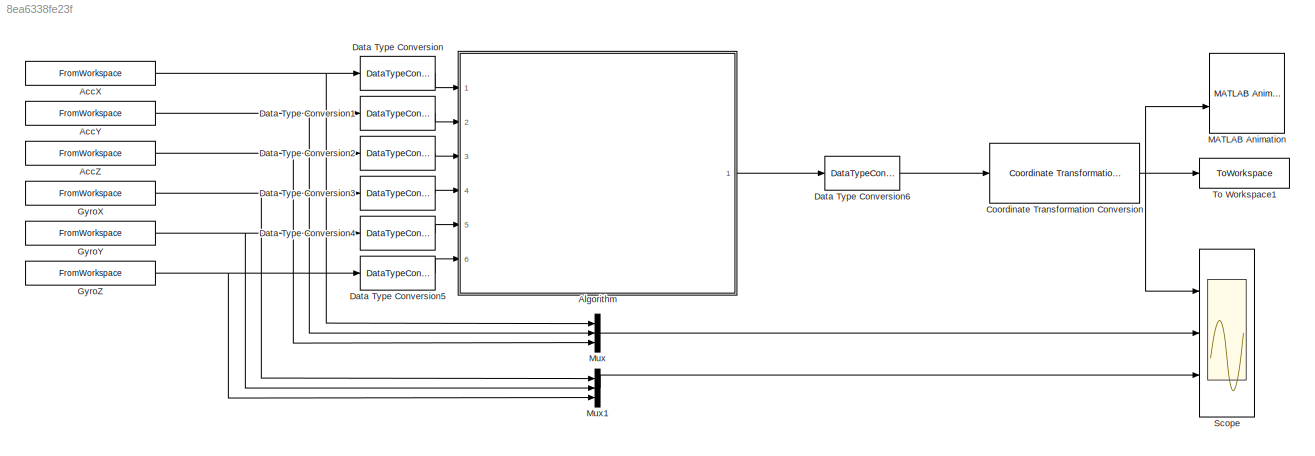
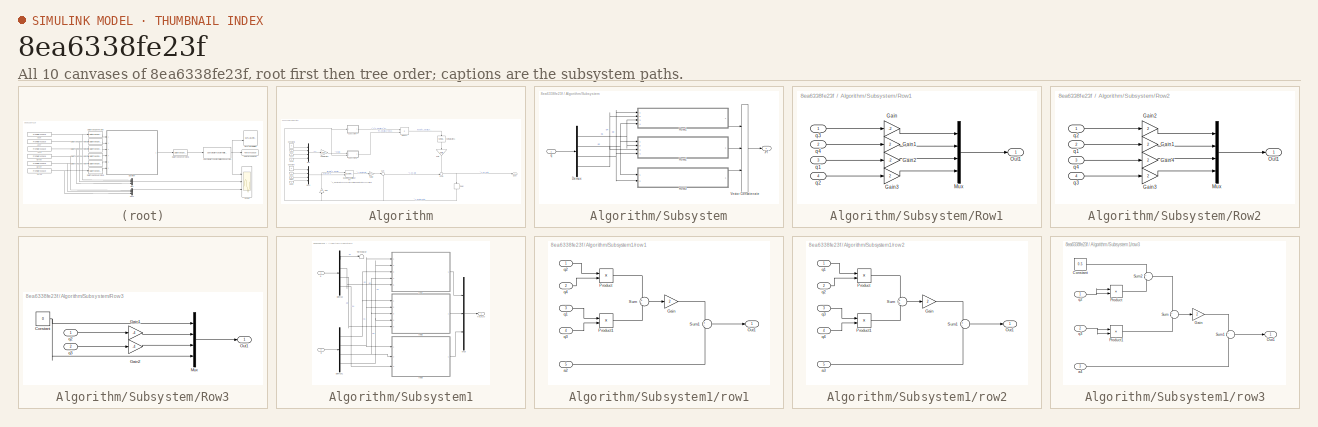
[diagram: thumbnail index - all 10 canvases of the model, root first then tree order]
MODEL slx_8ea6338fe23f
KIND model
CONFIG AbsTol = auto
CONFIG EnableMultiTasking = off
CONFIG FixedStep = dt
CONFIG MaxStep = auto
CONFIG MinStep = auto
CONFIG RelTol = 1e-3
CONFIG SampleTimeConstraint = Unconstrained
CONFIG Solver = FixedStepDiscrete
CONFIG SolverName = FixedStepDiscrete
CONFIG StartTime = 0.0
CONFIG StopTime = t(totalNumSamples)
BLOCK [FromWorkspace] AccX
  SampleTime = dt
  VariableName = AccX
BLOCK [FromWorkspace] AccY
  SampleTime = dt
  VariableName = AccY
BLOCK [FromWorkspace] AccZ
  SampleTime = dt
  VariableName = AccZ
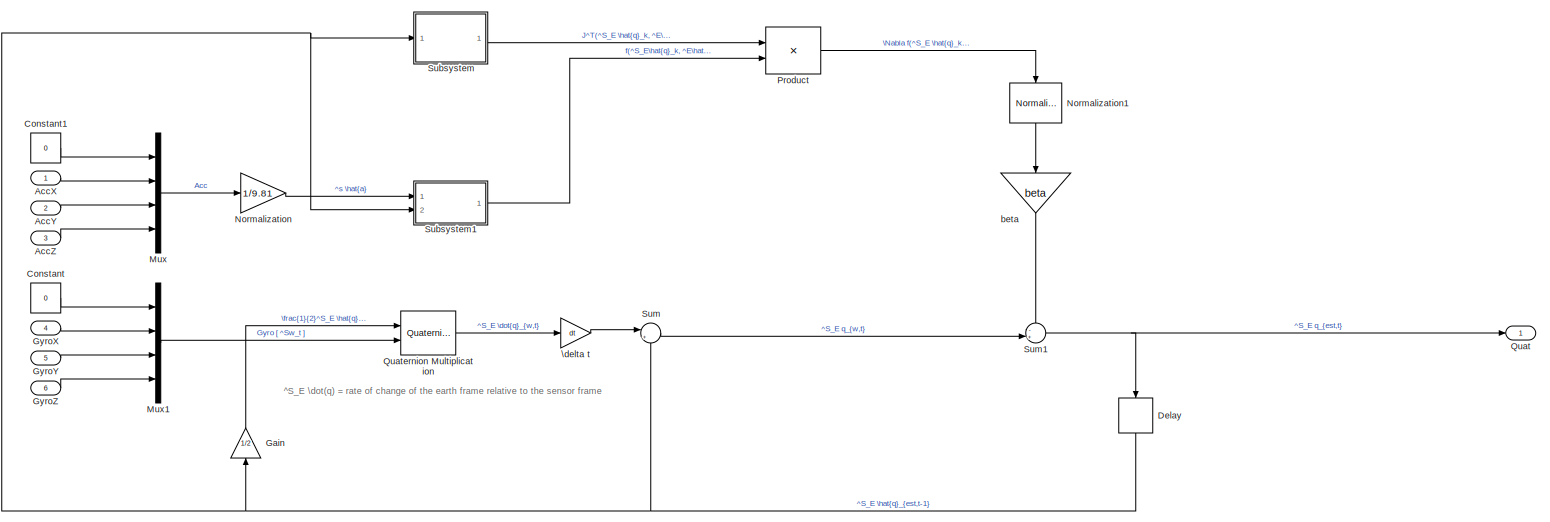
[diagram: Algorithm - part 1/1, most of the canvas]
BLOCK [SubSystem] Algorithm
  Ports = [6, 1]
  RequestExecContextInheritance = off
BLOCK [Inport] Algorithm/AccX
BLOCK [Inport] Algorithm/AccY
  Port = 2
BLOCK [Inport] Algorithm/AccZ
  Port = 3
BLOCK [Constant] Algorithm/Constant
  OutDataTypeStr = single
  Value = 0
BLOCK [Constant] Algorithm/Constant1
  OutDataTypeStr = single
  Value = 0
BLOCK [Delay] Algorithm/Delay
  DelayLength = 1
  InitialCondition = [1 0 0 0]
  InputPortMap = u0
  NameLocation = left
  Ports = [1, 1]
BLOCK [Gain] Algorithm/Gain
  Gain = 1/2
  NameLocation = right
  OutDataTypeStr = Inherit: Same as input
BLOCK [Inport] Algorithm/GyroX
  Port = 4
BLOCK [Inport] Algorithm/GyroY
  Port = 5
BLOCK [Inport] Algorithm/GyroZ
  Port = 6
BLOCK [Mux] Algorithm/Mux
  DisplayOption = bar
  Ports = [4, 1]
BLOCK [Mux] Algorithm/Mux1
  DisplayOption = bar
  Ports = [4, 1]
BLOCK [Gain] Algorithm/Normalization
  Commented = through
  Gain = 1/9.81
  OutDataTypeStr = Inherit: Same as input
  ParamDataTypeStr = Inherit: Same as input
BLOCK [Reference] Algorithm/Normalization1  REF=dspmathops/Normalization
  NameLocation = left
  Ports = [1, 1]
  SourceBlock = dspmathops/Normalization
  SourceProductBaseCode = DS
  SourceType = Normalization
BLOCK [Product] Algorithm/Product
  Multiplication = Matrix(*)
  OutDataTypeStr = Inherit: Same as first input
  Ports = [2, 1]
BLOCK [Outport] Algorithm/Quat
BLOCK [Reference] Algorithm/Quaternion Multiplication  REF=aerolibutil/Quaternion
Multiplication
  Ports = [2, 1]
  SourceBlock = aerolibutil/Quaternion\nMultiplication
  SourceProductBaseCode = AE
  SourceType = Quaternion Multiplication
BLOCK [SubSystem] Algorithm/Subsystem
  Ports = [1, 1]
  RequestExecContextInheritance = off
BLOCK [Demux] Algorithm/Subsystem/Demux
  Ports = [1, 4]
BLOCK [Outport] Algorithm/Subsystem/J^T
BLOCK [SubSystem] Algorithm/Subsystem/Row1
  Ports = [4, 1]
  RequestExecContextInheritance = off
BLOCK [Gain] Algorithm/Subsystem/Row1/Gain
  Gain = -2
  OutDataTypeStr = Inherit: Same as input
  ParamDataTypeStr = single
BLOCK [Gain] Algorithm/Subsystem/Row1/Gain1
  Gain = 2
  OutDataTypeStr = single
  ParamDataTypeStr = Inherit: Same as input
BLOCK [Gain] Algorithm/Subsystem/Row1/Gain2
  Gain = -2
  OutDataTypeStr = single
  ParamDataTypeStr = Inherit: Same as input
BLOCK [Gain] Algorithm/Subsystem/Row1/Gain3
  Gain = 2
  OutDataTypeStr = single
  ParamDataTypeStr = Inherit: Same as input
BLOCK [Mux] Algorithm/Subsystem/Row1/Mux
  DisplayOption = bar
  Ports = [4, 1]
BLOCK [Outport] Algorithm/Subsystem/Row1/Out1
BLOCK [Inport] Algorithm/Subsystem/Row1/q1
  Port = 3
BLOCK [Inport] Algorithm/Subsystem/Row1/q2
  Port = 4
BLOCK [Inport] Algorithm/Subsystem/Row1/q3
BLOCK [Inport] Algorithm/Subsystem/Row1/q4
  Port = 2
BLOCK [SubSystem] Algorithm/Subsystem/Row2
  Ports = [4, 1]
  RequestExecContextInheritance = off
BLOCK [Gain] Algorithm/Subsystem/Row2/Gain1
  Gain = 2
  OutDataTypeStr = single
  ParamDataTypeStr = Inherit: Same as input
BLOCK [Gain] Algorithm/Subsystem/Row2/Gain2
  Gain = 2
  OutDataTypeStr = single
  ParamDataTypeStr = Inherit: Same as input
BLOCK [Gain] Algorithm/Subsystem/Row2/Gain3
  Gain = 2
  OutDataTypeStr = single
  ParamDataTypeStr = Inherit: Same as input
BLOCK [Gain] Algorithm/Subsystem/Row2/Gain4
  Gain = 2
  OutDataTypeStr = single
  ParamDataTypeStr = Inherit: Same as input
BLOCK [Mux] Algorithm/Subsystem/Row2/Mux
  DisplayOption = bar
  Ports = [4, 1]
BLOCK [Outport] Algorithm/Subsystem/Row2/Out1
BLOCK [Inport] Algorithm/Subsystem/Row2/q1
  Port = 2
BLOCK [Inport] Algorithm/Subsystem/Row2/q2
BLOCK [Inport] Algorithm/Subsystem/Row2/q3
  Port = 4
BLOCK [Inport] Algorithm/Subsystem/Row2/q4
  Port = 3
BLOCK [SubSystem] Algorithm/Subsystem/Row3
  Ports = [2, 1]
  RequestExecContextInheritance = off
BLOCK [Constant] Algorithm/Subsystem/Row3/Constant
  OutDataTypeStr = single
  Value = 0
BLOCK [Gain] Algorithm/Subsystem/Row3/Gain1
  Gain = -4
  OutDataTypeStr = single
BLOCK [Gain] Algorithm/Subsystem/Row3/Gain2
  Gain = -4
  OutDataTypeStr = single
BLOCK [Mux] Algorithm/Subsystem/Row3/Mux
  DisplayOption = bar
  Ports = [4, 1]
BLOCK [Outport] Algorithm/Subsystem/Row3/Out1
BLOCK [Inport] Algorithm/Subsystem/Row3/q2
BLOCK [Inport] Algorithm/Subsystem/Row3/q3
  Port = 2
BLOCK [Concatenate] Algorithm/Subsystem/Vector Concatenate
  ConcatenateDimension = 2
  Mode = Multidimensional array
  NumInputs = 3
  Ports = [3, 1]
BLOCK [Inport] Algorithm/Subsystem/q
BLOCK [SubSystem] Algorithm/Subsystem1
  Ports = [2, 1]
  RequestExecContextInheritance = off
BLOCK [Demux] Algorithm/Subsystem1/Demux
  Ports = [1, 4]
BLOCK [Demux] Algorithm/Subsystem1/Demux1
  Ports = [1, 4]
BLOCK [Mux] Algorithm/Subsystem1/Mux
  DisplayOption = bar
  Inputs = 3
  Ports = [3, 1]
BLOCK [Terminator] Algorithm/Subsystem1/Terminator
BLOCK [Inport] Algorithm/Subsystem1/a
BLOCK [Outport] Algorithm/Subsystem1/f(q,d,s)
BLOCK [Inport] Algorithm/Subsystem1/q
  Port = 2
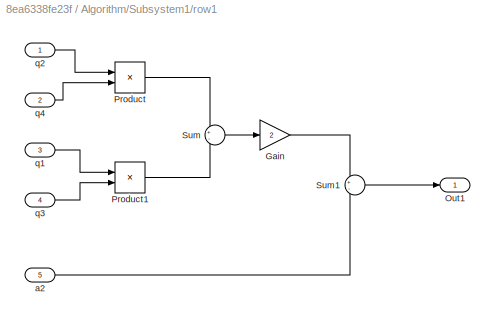
BLOCK [SubSystem] Algorithm/Subsystem1/row1
  Ports = [5, 1]
  RequestExecContextInheritance = off
BLOCK [Gain] Algorithm/Subsystem1/row1/Gain
  Gain = 2
  OutDataTypeStr = single
  ParamDataTypeStr = Inherit: Same as input
BLOCK [Outport] Algorithm/Subsystem1/row1/Out1
BLOCK [Product] Algorithm/Subsystem1/row1/Product
  OutDataTypeStr = Inherit: Same as first input
  Ports = [2, 1]
BLOCK [Product] Algorithm/Subsystem1/row1/Product1
  OutDataTypeStr = Inherit: Same as first input
  Ports = [2, 1]
BLOCK [Sum] Algorithm/Subsystem1/row1/Sum
  AccumDataTypeStr = single
  Inputs = +-
  OutDataTypeStr = single
  Ports = [2, 1]
BLOCK [Sum] Algorithm/Subsystem1/row1/Sum1
  AccumDataTypeStr = single
  Inputs = +-
  OutDataTypeStr = single
  Ports = [2, 1]
BLOCK [Inport] Algorithm/Subsystem1/row1/a2
  Port = 5
BLOCK [Inport] Algorithm/Subsystem1/row1/q1
  Port = 3
BLOCK [Inport] Algorithm/Subsystem1/row1/q2
BLOCK [Inport] Algorithm/Subsystem1/row1/q3
  Port = 4
BLOCK [Inport] Algorithm/Subsystem1/row1/q4
  Port = 2
BLOCK [SubSystem] Algorithm/Subsystem1/row2
  Ports = [5, 1]
  RequestExecContextInheritance = off
BLOCK [Gain] Algorithm/Subsystem1/row2/Gain
  Gain = 2
  OutDataTypeStr = single
  ParamDataTypeStr = Inherit: Same as input
BLOCK [Outport] Algorithm/Subsystem1/row2/Out1
BLOCK [Product] Algorithm/Subsystem1/row2/Product
  OutDataTypeStr = Inherit: Same as first input
  Ports = [2, 1]
BLOCK [Product] Algorithm/Subsystem1/row2/Product1
  OutDataTypeStr = Inherit: Same as first input
  Ports = [2, 1]
BLOCK [Sum] Algorithm/Subsystem1/row2/Sum
  AccumDataTypeStr = single
  OutDataTypeStr = single
  Ports = [2, 1]
BLOCK [Sum] Algorithm/Subsystem1/row2/Sum1
  AccumDataTypeStr = single
  Inputs = +-
  OutDataTypeStr = single
  Ports = [2, 1]
BLOCK [Inport] Algorithm/Subsystem1/row2/a3
  Port = 5
BLOCK [Inport] Algorithm/Subsystem1/row2/q1
BLOCK [Inport] Algorithm/Subsystem1/row2/q2
  Port = 2
BLOCK [Inport] Algorithm/Subsystem1/row2/q3
  Port = 3
BLOCK [Inport] Algorithm/Subsystem1/row2/q4
  Port = 4
BLOCK [SubSystem] Algorithm/Subsystem1/row3
  Ports = [3, 1]
  RequestExecContextInheritance = off
BLOCK [Constant] Algorithm/Subsystem1/row3/Constant
  OutDataTypeStr = single
  Value = 0.5
BLOCK [Gain] Algorithm/Subsystem1/row3/Gain
  Gain = 2
  OutDataTypeStr = single
  ParamDataTypeStr = Inherit: Same as input
BLOCK [Outport] Algorithm/Subsystem1/row3/Out1
BLOCK [Product] Algorithm/Subsystem1/row3/Product
  OutDataTypeStr = Inherit: Same as first input
  Ports = [2, 1]
BLOCK [Product] Algorithm/Subsystem1/row3/Product1
  OutDataTypeStr = Inherit: Same as first input
  Ports = [2, 1]
BLOCK [Sum] Algorithm/Subsystem1/row3/Sum
  AccumDataTypeStr = single
  Inputs = +-
  OutDataTypeStr = single
  Ports = [2, 1]
BLOCK [Sum] Algorithm/Subsystem1/row3/Sum1
  AccumDataTypeStr = single
  Inputs = +-
  OutDataTypeStr = single
  Ports = [2, 1]
BLOCK [Sum] Algorithm/Subsystem1/row3/Sum2
  AccumDataTypeStr = single
  Inputs = +-
  OutDataTypeStr = single
  Ports = [2, 1]
BLOCK [Inport] Algorithm/Subsystem1/row3/a4
  Port = 3
BLOCK [Inport] Algorithm/Subsystem1/row3/q2
BLOCK [Inport] Algorithm/Subsystem1/row3/q3
  Port = 2
BLOCK [Sum] Algorithm/Sum
  AccumDataTypeStr = Inherit: Same as first input
  Inputs = |++
  OutDataTypeStr = Inherit: Same as first input
  Ports = [2, 1]
BLOCK [Sum] Algorithm/Sum1
  AccumDataTypeStr = single
  Inputs = -+|
  OutDataTypeStr = single
  Ports = [2, 1]
BLOCK [Gain] Algorithm/\delta t
  Gain = dt
  OutDataTypeStr = Inherit: Same as input
BLOCK [Gain] Algorithm/beta
  Gain = beta
  NameLocation = right
  OutDataTypeStr = Inherit: Same as input
  ParamDataTypeStr = Inherit: Same as input
BLOCK [Reference] Coordinate Transformation Conversion  REF=robotcorelib/Coordinate Transformation Conversion
  Ports = [1, 1]
  SourceBlock = robotcorelib/Coordinate Transformation Conversion
  SourceProductBaseCode = NV,RO,RR
  SourceType = robotics.slcore.internal.block.CoordinateTransformationConversion
BLOCK [DataTypeConversion] Data Type Conversion
  OutDataTypeStr = single
  RndMeth = Floor
  SaturateOnIntegerOverflow = off
BLOCK [DataTypeConversion] Data Type Conversion1
  OutDataTypeStr = single
  RndMeth = Floor
  SaturateOnIntegerOverflow = off
BLOCK [DataTypeConversion] Data Type Conversion2
  OutDataTypeStr = single
  RndMeth = Floor
  SaturateOnIntegerOverflow = off
BLOCK [DataTypeConversion] Data Type Conversion3
  OutDataTypeStr = single
  RndMeth = Floor
  SaturateOnIntegerOverflow = off
BLOCK [DataTypeConversion] Data Type Conversion4
  OutDataTypeStr = single
  RndMeth = Floor
  SaturateOnIntegerOverflow = off
BLOCK [DataTypeConversion] Data Type Conversion5
  OutDataTypeStr = single
  RndMeth = Floor
  SaturateOnIntegerOverflow = off
BLOCK [DataTypeConversion] Data Type Conversion6
  OutDataTypeStr = double
  RndMeth = Floor
  SaturateOnIntegerOverflow = off
BLOCK [FromWorkspace] GyroX
  SampleTime = dt
  VariableName = GyroX
BLOCK [FromWorkspace] GyroY
  SampleTime = dt
  VariableName = GyroY
BLOCK [FromWorkspace] GyroZ
  SampleTime = dt
  VariableName = GyroZ
BLOCK [Reference] MATLAB Animation  REF=aerolibanim/MATLAB
Animation
  Ports = [2]
  SourceBlock = aerolibanim/MATLAB\nAnimation
  SourceProductBaseCode = AE
  SourceType = AeroMATLABAnimation
  Tag = Matlab Animation 6 DOF
BLOCK [Mux] Mux
  DisplayOption = bar
  Inputs = 3
  Ports = [3, 1]
BLOCK [Mux] Mux1
  DisplayOption = bar
  Inputs = 3
  Ports = [3, 1]
BLOCK [Scope] Scope
  Floating = off
  NumInputPorts = 3
  Ports = [3]
  ScopeSpecificationString = Simulink.scopes.TimeScopeBlockCfg('CurrentConfiguration', extmgr.ConfigurationSet(extmgr.Configuration('Core','General UI',true),extmgr.Configuration('Core','Source UI',true),extmgr.Configuration('Sources','WiredSimulink',true),extmgr.Configuration('Visuals','Time Domain',true,'SerializedDisplays',{struct('MinYLimReal','-3.92434','MaxYLimReal','3.92007','YLabelReal','','MinYLimMag','0.00000','MaxY...<+2795ch>
BLOCK [ToWorkspace] To Workspace1
  FixptAsFi = on
  MaxDataPoints = inf
  Ports = [1]
  SampleTime = -1
  SaveFormat = Timeseries
  VariableName = EulXYZ
ANNOTATION Algorithm: ^S_E \dot(q) = rate of change of the earth frame relative to the sensor frame
NET AccX:1 -> Data Type Conversion:1, Mux:1
NET AccY:1 -> Data Type Conversion1:1, Mux:2
NET AccZ:1 -> Data Type Conversion2:1, Mux:3
LINE Algorithm/AccX:1 -> Algorithm/Mux:2
LINE Algorithm/AccY:1 -> Algorithm/Mux:3
LINE Algorithm/AccZ:1 -> Algorithm/Mux:4
LINE Algorithm/Constant1:1 -> Algorithm/Mux:1
LINE Algorithm/Constant:1 -> Algorithm/Mux1:1
NET Algorithm/Delay:1 -> Algorithm/Gain:1, Algorithm/Subsystem1:2, Algorithm/Subsystem:1, Algorithm/Sum:2
LINE Algorithm/Gain:1 -> Algorithm/Quaternion Multiplication:1
LINE Algorithm/GyroX:1 -> Algorithm/Mux1:2
LINE Algorithm/GyroY:1 -> Algorithm/Mux1:3
LINE Algorithm/GyroZ:1 -> Algorithm/Mux1:4
LINE Algorithm/Mux1:1 -> Algorithm/Quaternion Multiplication:2
LINE Algorithm/Mux:1 -> Algorithm/Normalization:1
LINE Algorithm/Normalization1:1 -> Algorithm/beta:1
LINE Algorithm/Normalization:1 -> Algorithm/Subsystem1:1
LINE Algorithm/Product:1 -> Algorithm/Normalization1:1
LINE Algorithm/Quaternion Multiplication:1 -> Algorithm/\delta t:1
NET Algorithm/Subsystem/Demux:1 -> Algorithm/Subsystem/Row1:3, Algorithm/Subsystem/Row2:2
NET Algorithm/Subsystem/Demux:2 -> Algorithm/Subsystem/Row1:4, Algorithm/Subsystem/Row2:1, Algorithm/Subsystem/Row3:1
NET Algorithm/Subsystem/Demux:3 -> Algorithm/Subsystem/Row1:1, Algorithm/Subsystem/Row2:4, Algorithm/Subsystem/Row3:2
NET Algorithm/Subsystem/Demux:4 -> Algorithm/Subsystem/Row1:2, Algorithm/Subsystem/Row2:3
LINE Algorithm/Subsystem/Row1/Gain1:1 -> Algorithm/Subsystem/Row1/Mux:2
LINE Algorithm/Subsystem/Row1/Gain2:1 -> Algorithm/Subsystem/Row1/Mux:3
LINE Algorithm/Subsystem/Row1/Gain3:1 -> Algorithm/Subsystem/Row1/Mux:4
LINE Algorithm/Subsystem/Row1/Gain:1 -> Algorithm/Subsystem/Row1/Mux:1
LINE Algorithm/Subsystem/Row1/Mux:1 -> Algorithm/Subsystem/Row1/Out1:1
LINE Algorithm/Subsystem/Row1/q1:1 -> Algorithm/Subsystem/Row1/Gain2:1
LINE Algorithm/Subsystem/Row1/q2:1 -> Algorithm/Subsystem/Row1/Gain3:1
LINE Algorithm/Subsystem/Row1/q3:1 -> Algorithm/Subsystem/Row1/Gain:1
LINE Algorithm/Subsystem/Row1/q4:1 -> Algorithm/Subsystem/Row1/Gain1:1
LINE Algorithm/Subsystem/Row1:1 -> Algorithm/Subsystem/Vector Concatenate:1
LINE Algorithm/Subsystem/Row2/Gain1:1 -> Algorithm/Subsystem/Row2/Mux:2
LINE Algorithm/Subsystem/Row2/Gain2:1 -> Algorithm/Subsystem/Row2/Mux:1
LINE Algorithm/Subsystem/Row2/Gain3:1 -> Algorithm/Subsystem/Row2/Mux:4
LINE Algorithm/Subsystem/Row2/Gain4:1 -> Algorithm/Subsystem/Row2/Mux:3
LINE Algorithm/Subsystem/Row2/Mux:1 -> Algorithm/Subsystem/Row2/Out1:1
LINE Algorithm/Subsystem/Row2/q1:1 -> Algorithm/Subsystem/Row2/Gain1:1
LINE Algorithm/Subsystem/Row2/q2:1 -> Algorithm/Subsystem/Row2/Gain2:1
LINE Algorithm/Subsystem/Row2/q3:1 -> Algorithm/Subsystem/Row2/Gain3:1
LINE Algorithm/Subsystem/Row2/q4:1 -> Algorithm/Subsystem/Row2/Gain4:1
LINE Algorithm/Subsystem/Row2:1 -> Algorithm/Subsystem/Vector Concatenate:2
NET Algorithm/Subsystem/Row3/Constant:1 -> Algorithm/Subsystem/Row3/Mux:1, Algorithm/Subsystem/Row3/Mux:4
LINE Algorithm/Subsystem/Row3/Gain1:1 -> Algorithm/Subsystem/Row3/Mux:2
LINE Algorithm/Subsystem/Row3/Gain2:1 -> Algorithm/Subsystem/Row3/Mux:3
LINE Algorithm/Subsystem/Row3/Mux:1 -> Algorithm/Subsystem/Row3/Out1:1
LINE Algorithm/Subsystem/Row3/q2:1 -> Algorithm/Subsystem/Row3/Gain1:1
LINE Algorithm/Subsystem/Row3/q3:1 -> Algorithm/Subsystem/Row3/Gain2:1
LINE Algorithm/Subsystem/Row3:1 -> Algorithm/Subsystem/Vector Concatenate:3
LINE Algorithm/Subsystem/Vector Concatenate:1 -> Algorithm/Subsystem/J^T:1
LINE Algorithm/Subsystem/q:1 -> Algorithm/Subsystem/Demux:1
NET Algorithm/Subsystem1/Demux1:1 -> Algorithm/Subsystem1/row1:3, Algorithm/Subsystem1/row2:1
NET Algorithm/Subsystem1/Demux1:2 -> Algorithm/Subsystem1/row1:1, Algorithm/Subsystem1/row2:2, Algorithm/Subsystem1/row3:1
NET Algorithm/Subsystem1/Demux1:3 -> Algorithm/Subsystem1/row1:4, Algorithm/Subsystem1/row2:3, Algorithm/Subsystem1/row3:2
NET Algorithm/Subsystem1/Demux1:4 -> Algorithm/Subsystem1/row1:2, Algorithm/Subsystem1/row2:4
LINE Algorithm/Subsystem1/Demux:1 -> Algorithm/Subsystem1/Terminator:1
LINE Algorithm/Subsystem1/Demux:2 -> Algorithm/Subsystem1/row1:5
LINE Algorithm/Subsystem1/Demux:3 -> Algorithm/Subsystem1/row2:5
LINE Algorithm/Subsystem1/Demux:4 -> Algorithm/Subsystem1/row3:3
LINE Algorithm/Subsystem1/Mux:1 -> Algorithm/Subsystem1/f(q,d,s):1
LINE Algorithm/Subsystem1/a:1 -> Algorithm/Subsystem1/Demux:1
LINE Algorithm/Subsystem1/q:1 -> Algorithm/Subsystem1/Demux1:1
LINE Algorithm/Subsystem1/row1/Gain:1 -> Algorithm/Subsystem1/row1/Sum1:1
LINE Algorithm/Subsystem1/row1/Product1:1 -> Algorithm/Subsystem1/row1/Sum:2
LINE Algorithm/Subsystem1/row1/Product:1 -> Algorithm/Subsystem1/row1/Sum:1
LINE Algorithm/Subsystem1/row1/Sum1:1 -> Algorithm/Subsystem1/row1/Out1:1
LINE Algorithm/Subsystem1/row1/Sum:1 -> Algorithm/Subsystem1/row1/Gain:1
LINE Algorithm/Subsystem1/row1/a2:1 -> Algorithm/Subsystem1/row1/Sum1:2
LINE Algorithm/Subsystem1/row1/q1:1 -> Algorithm/Subsystem1/row1/Product1:1
LINE Algorithm/Subsystem1/row1/q2:1 -> Algorithm/Subsystem1/row1/Product:1
LINE Algorithm/Subsystem1/row1/q3:1 -> Algorithm/Subsystem1/row1/Product1:2
LINE Algorithm/Subsystem1/row1/q4:1 -> Algorithm/Subsystem1/row1/Product:2
LINE Algorithm/Subsystem1/row1:1 -> Algorithm/Subsystem1/Mux:1
LINE Algorithm/Subsystem1/row2/Gain:1 -> Algorithm/Subsystem1/row2/Sum1:1
LINE Algorithm/Subsystem1/row2/Product1:1 -> Algorithm/Subsystem1/row2/Sum:2
LINE Algorithm/Subsystem1/row2/Product:1 -> Algorithm/Subsystem1/row2/Sum:1
LINE Algorithm/Subsystem1/row2/Sum1:1 -> Algorithm/Subsystem1/row2/Out1:1
LINE Algorithm/Subsystem1/row2/Sum:1 -> Algorithm/Subsystem1/row2/Gain:1
LINE Algorithm/Subsystem1/row2/a3:1 -> Algorithm/Subsystem1/row2/Sum1:2
LINE Algorithm/Subsystem1/row2/q1:1 -> Algorithm/Subsystem1/row2/Product:1
LINE Algorithm/Subsystem1/row2/q2:1 -> Algorithm/Subsystem1/row2/Product:2
LINE Algorithm/Subsystem1/row2/q3:1 -> Algorithm/Subsystem1/row2/Product1:1
LINE Algorithm/Subsystem1/row2/q4:1 -> Algorithm/Subsystem1/row2/Product1:2
LINE Algorithm/Subsystem1/row2:1 -> Algorithm/Subsystem1/Mux:2
LINE Algorithm/Subsystem1/row3/Constant:1 -> Algorithm/Subsystem1/row3/Sum2:1
LINE Algorithm/Subsystem1/row3/Gain:1 -> Algorithm/Subsystem1/row3/Sum1:1
LINE Algorithm/Subsystem1/row3/Product1:1 -> Algorithm/Subsystem1/row3/Sum:2
LINE Algorithm/Subsystem1/row3/Product:1 -> Algorithm/Subsystem1/row3/Sum2:2
LINE Algorithm/Subsystem1/row3/Sum1:1 -> Algorithm/Subsystem1/row3/Out1:1
LINE Algorithm/Subsystem1/row3/Sum2:1 -> Algorithm/Subsystem1/row3/Sum:1
LINE Algorithm/Subsystem1/row3/Sum:1 -> Algorithm/Subsystem1/row3/Gain:1
LINE Algorithm/Subsystem1/row3/a4:1 -> Algorithm/Subsystem1/row3/Sum1:2
NET Algorithm/Subsystem1/row3/q2:1 -> Algorithm/Subsystem1/row3/Product:1, Algorithm/Subsystem1/row3/Product:2
NET Algorithm/Subsystem1/row3/q3:1 -> Algorithm/Subsystem1/row3/Product1:1, Algorithm/Subsystem1/row3/Product1:2
LINE Algorithm/Subsystem1/row3:1 -> Algorithm/Subsystem1/Mux:3
LINE Algorithm/Subsystem1:1 -> Algorithm/Product:2
LINE Algorithm/Subsystem:1 -> Algorithm/Product:1
NET Algorithm/Sum1:1 -> Algorithm/Delay:1, Algorithm/Quat:1
LINE Algorithm/Sum:1 -> Algorithm/Sum1:2
LINE Algorithm/\delta t:1 -> Algorithm/Sum:1
LINE Algorithm/beta:1 -> Algorithm/Sum1:1
LINE Algorithm:1 -> Data Type Conversion6:1
NET Coordinate Transformation Conversion:1 -> MATLAB Animation:2, Scope:1, To Workspace1:1
LINE Data Type Conversion1:1 -> Algorithm:2
LINE Data Type Conversion2:1 -> Algorithm:3
LINE Data Type Conversion3:1 -> Algorithm:4
LINE Data Type Conversion4:1 -> Algorithm:5
LINE Data Type Conversion5:1 -> Algorithm:6
LINE Data Type Conversion6:1 -> Coordinate Transformation Conversion:1
LINE Data Type Conversion:1 -> Algorithm:1
NET GyroX:1 -> Data Type Conversion3:1, Mux1:1
NET GyroY:1 -> Data Type Conversion4:1, Mux1:2
NET GyroZ:1 -> Data Type Conversion5:1, Mux1:3
LINE Mux1:1 -> Scope:3
LINE Mux:1 -> Scope:2
note: NET lines group one-source signal fan-out (src -> all destinations, sorted); 1:1 wires keep LINE
